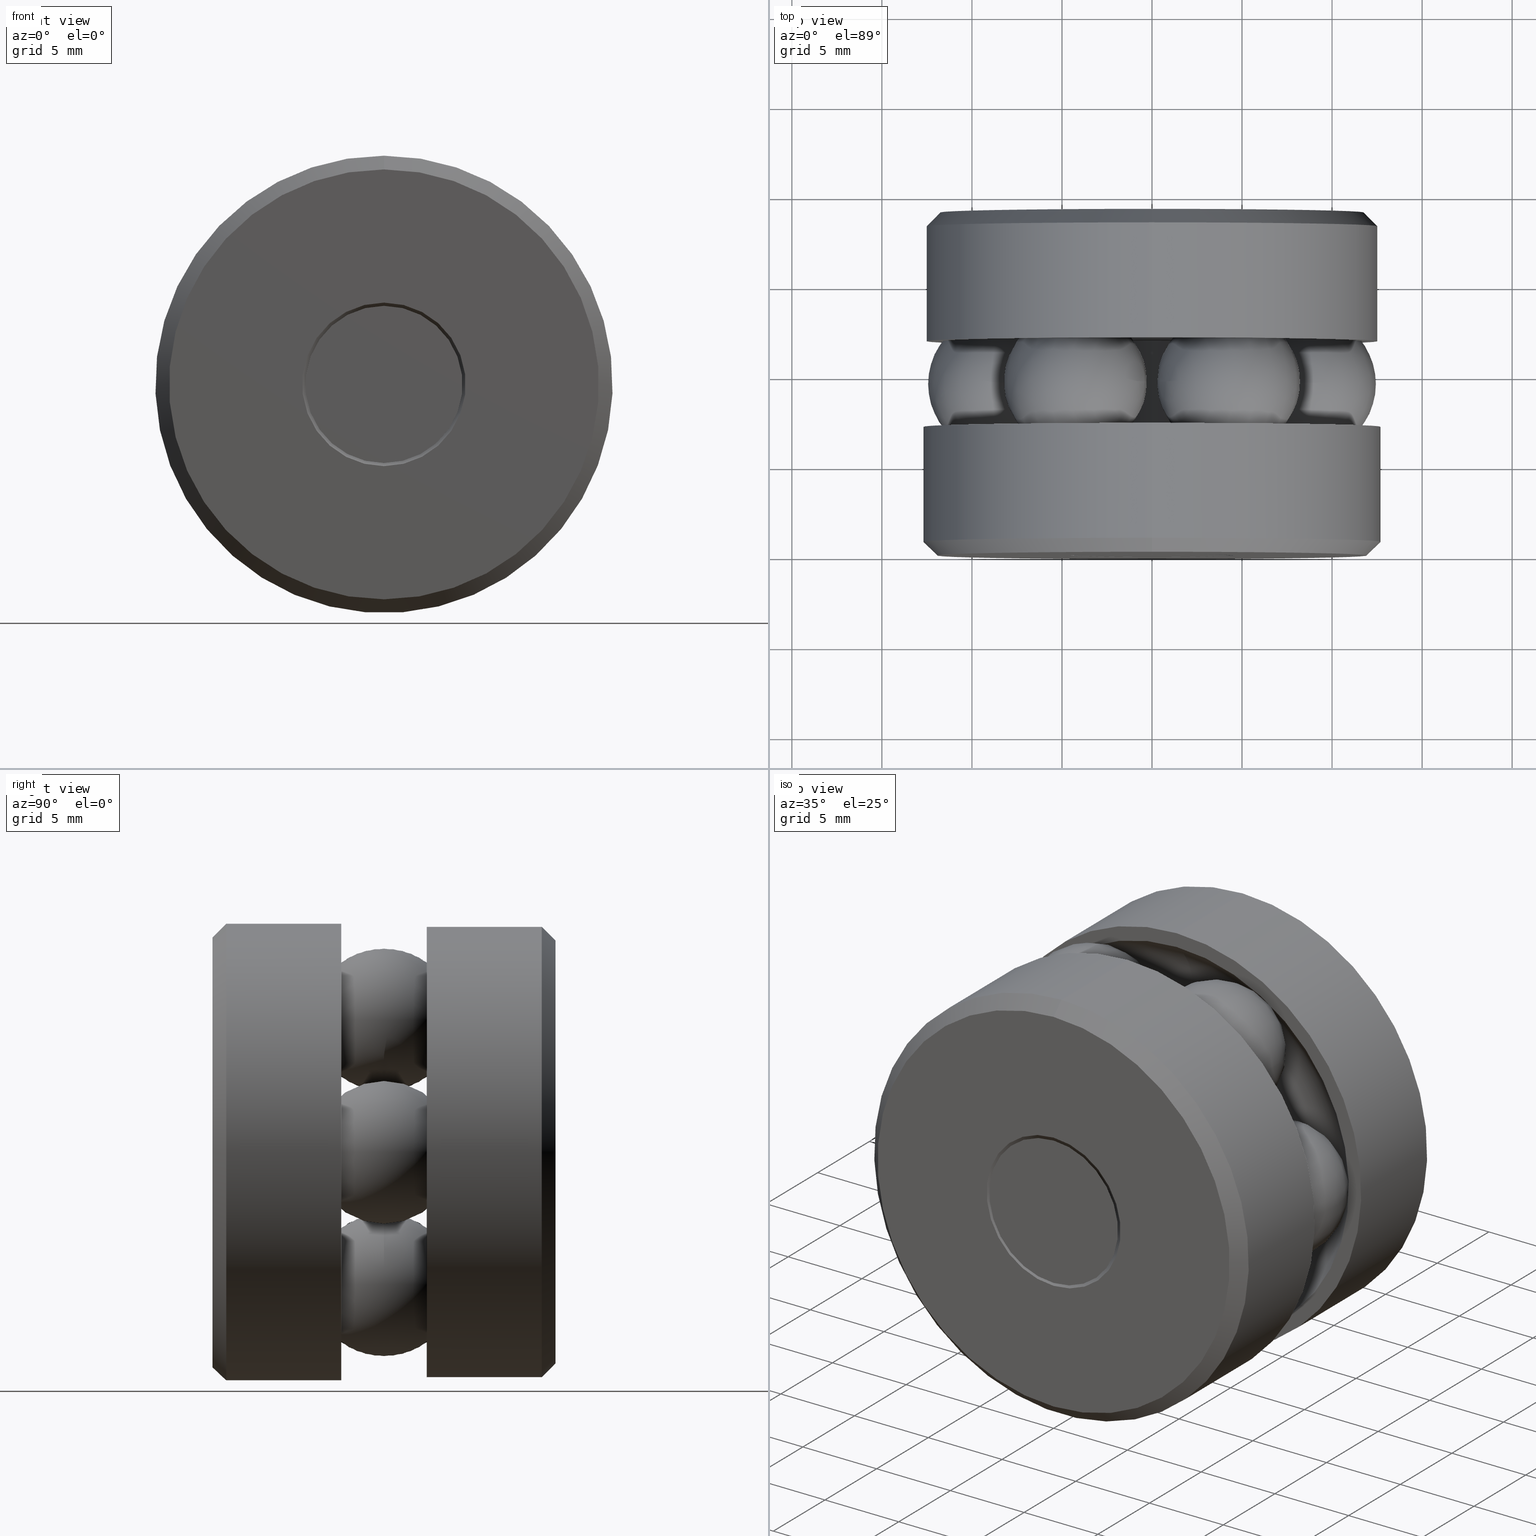
[diagram: canonical four-view strip — front | top / right | iso, engineering-drawing reading convention]
A machine part, canonical four-view strip (front | top / right | iso — engineering-drawing reading convention). The complete STEP part file that produces these views, byte-faithful:
ISO-10303-21;
HEADER;
FILE_DESCRIPTION (( 'STEP AP203' ),
    '1' );
FILE_NAME ('T-114RG_T-114RG-1000.step',
    '2016-02-04T15:34:11',
    ( '' ),
    ( '' ),
    'SwSTEP 2.0',
    'SolidWorks 2016',
    '' );
FILE_SCHEMA (( 'CONFIG_CONTROL_DESIGN' ));
ENDSEC;

DATA;
#1 = DIRECTION ( 'NONE',  ( 0.0000000000000000000, 0.0000000000000000000, -1.000000000000000000 ) ) ;
#2 = EDGE_LOOP ( 'NONE', ( #15 ) ) ;
#3 = APPLICATION_CONTEXT ( 'configuration controlled 3d designs of mechanical parts and assemblies' ) ;
#4 = AXIS2_PLACEMENT_3D ( 'NONE', #483, #441, #523 ) ;
#5 = DIRECTION ( 'NONE',  ( 0.5000000000000101000, 0.0000000000000000000, 0.8660254037844328200 ) ) ;
#6 = CIRCLE ( 'NONE', #475, 0.1717499999999989300 ) ;
#7 = DATE_TIME_ROLE ( 'creation_date' ) ;
#8 = EDGE_LOOP ( 'NONE', ( #510 ) ) ;
#9 = PERSON_AND_ORGANIZATION_ROLE ( 'creator' ) ;
#10 = APPROVAL_ROLE ( '' ) ;
#11 = DIRECTION ( 'NONE',  ( 0.0000000000000000000, 0.0000000000000000000, 1.000000000000000000 ) ) ;
#12 = CALENDAR_DATE ( 2016, 4, 2 ) ;
#13 = SPHERICAL_SURFACE ( 'NONE', #165, 0.1560000000000000000 ) ;
#14 = EDGE_CURVE ( 'NONE', #62, #62, #498, .T. ) ;
#15 = ORIENTED_EDGE ( 'NONE', *, *, #313, .T. ) ;
#16 = CARTESIAN_POINT ( 'NONE',  ( -0.1717499999999989300, 0.0000000000000000000, 0.0000000000000000000 ) ) ;
#17 = DIRECTION ( 'NONE',  ( -0.0000000000000000000, 1.000000000000000000, -0.0000000000000000000 ) ) ;
#18 = DIRECTION ( 'NONE',  ( -0.0000000000000000000, 1.000000000000000000, -0.0000000000000000000 ) ) ;
#19 = VERTEX_POINT ( 'NONE', #271 ) ;
#20 = CARTESIAN_POINT ( 'NONE',  ( 0.0000000000000000000, 0.6541789321881348300, 0.0000000000000000000 ) ) ;
#21 = FACE_OUTER_BOUND ( 'NONE', #104, .T. ) ;
#22 = DIRECTION ( 'NONE',  ( 0.0000000000000000000, 0.0000000000000000000, 1.000000000000000000 ) ) ;
#23 = ORIENTED_EDGE ( 'NONE', *, *, #232, .T. ) ;
#24 = PERSON_AND_ORGANIZATION ( #451, #200 ) ;
#25 = FACE_OUTER_BOUND ( 'NONE', #84, .T. ) ;
#26 = MANIFOLD_SOLID_BREP ( 'BALLS[3]', #143 ) ;
#27 = EDGE_LOOP ( 'NONE', ( #56 ) ) ;
#28 = CARTESIAN_POINT ( 'NONE',  ( 0.0000000000000000000, 0.0000000000000000000, 0.0000000000000000000 ) ) ;
#29 = CC_DESIGN_SECURITY_CLASSIFICATION ( #445, ( #297 ) ) ;
#30 = VERTEX_POINT ( 'NONE', #160 ) ;
#31 = FACE_BOUND ( 'NONE', #540, .T. ) ;
#32 = AXIS2_PLACEMENT_3D ( 'NONE', #199, #392, #350 ) ;
#33 = DIRECTION ( 'NONE',  ( 0.0000000000000000000, 0.0000000000000000000, 1.000000000000000000 ) ) ;
#34 = APPLICATION_CONTEXT ( 'configuration controlled 3d designs of mechanical parts and assemblies' ) ;
#35 = EDGE_LOOP ( 'NONE', ( #511 ) ) ;
#36 = ADVANCED_FACE ( 'NONE', ( #394, #355 ), #352, .T. ) ;
#37 = DIRECTION ( 'NONE',  ( 0.0000000000000000000, 0.0000000000000000000, 1.000000000000000000 ) ) ;
#38 = COORDINATED_UNIVERSAL_TIME_OFFSET ( 5, 0, .BEHIND. ) ;
#39 = FACE_OUTER_BOUND ( 'NONE', #134, .T. ) ;
#40 = DIRECTION ( 'NONE',  ( -0.0000000000000000000, 1.000000000000000000, -0.0000000000000000000 ) ) ;
#41 = ADVANCED_FACE ( 'NONE', ( #332, #542 ), #203, .T. ) ;
#42 = EDGE_LOOP ( 'NONE', ( #381 ) ) ;
#43 = EDGE_CURVE ( 'NONE', #497, #497, #285, .T. ) ;
#44 = CARTESIAN_POINT ( 'NONE',  ( -0.2102000000000000000, 0.4686000000000000200, 0.0000000000000000000 ) ) ;
#45 = VERTEX_POINT ( 'NONE', #438 ) ;
#46 = DIRECTION ( 'NONE',  ( -0.0000000000000000000, 1.000000000000000000, -0.0000000000000000000 ) ) ;
#47 = APPROVAL_STATUS ( 'not_yet_approved' ) ;
#48 = EDGE_LOOP ( 'NONE', ( #329 ) ) ;
#49 = AXIS2_PLACEMENT_3D ( 'NONE', #215, #544, #317 ) ;
#50 = LOCAL_TIME ( 10, 34, 11.00000000000000000, #163 ) ;
#51 = CARTESIAN_POINT ( 'NONE',  ( -0.1788210678118643800, 0.7500000000000001100, 0.0000000000000000000 ) ) ;
#52 = CONICAL_SURFACE ( 'NONE', #289, 0.08300000000000011500, 0.7853981633974431700 ) ;
#53 = CARTESIAN_POINT ( 'NONE',  ( 0.0000000000000000000, 0.0000000000000000000, 0.0000000000000000000 ) ) ;
#54 = EDGE_CURVE ( 'NONE', #391, #391, #177, .T. ) ;
#55 = APPLICATION_PROTOCOL_DEFINITION ( 'international standard', 'config_control_design', 1994, #34 ) ;
#56 = ORIENTED_EDGE ( 'NONE', *, *, #205, .F. ) ;
#57 = DIRECTION ( 'NONE',  ( -0.0000000000000000000, 1.000000000000000000, -0.0000000000000000000 ) ) ;
#58 = DIRECTION ( 'NONE',  ( 0.0000000000000000000, 0.0000000000000000000, 1.000000000000000000 ) ) ;
#59 = CARTESIAN_POINT ( 'NONE',  ( 0.0000000000000000000, 0.3750000000000001100, 0.0000000000000000000 ) ) ;
#60 = PRODUCT_DEFINITION_SHAPE ( 'NONE', 'NONE',  #155 ) ;
#61 = PRODUCT_RELATED_PRODUCT_CATEGORY ( 'detail', '', ( #411 ) ) ;
#62 = VERTEX_POINT ( 'NONE', #337 ) ;
#63 = DIRECTION ( 'NONE',  ( -0.0000000000000000000, 1.000000000000000000, -0.0000000000000000000 ) ) ;
#64 = CARTESIAN_POINT ( 'NONE',  ( -0.2101999999999999400, 0.2814000000000000900, 0.0000000000000000000 ) ) ;
#65 = PLANE ( 'NONE',  #82 ) ;
#66 = CARTESIAN_POINT ( 'NONE',  ( 0.0000000000000000000, 0.4686000000000001800, 0.0000000000000000000 ) ) ;
#67 = AXIS2_PLACEMENT_3D ( 'NONE', #365, #135, #145 ) ;
#68 = ORIENTED_EDGE ( 'NONE', *, *, #345, .F. ) ;
#69 = DIRECTION ( 'NONE',  ( 0.0000000000000000000, 0.0000000000000000000, 1.000000000000000000 ) ) ;
#70 = CALENDAR_DATE ( 2016, 4, 2 ) ;
#71 = FACE_BOUND ( 'NONE', #196, .T. ) ;
#72 = MANIFOLD_SOLID_BREP ( 'Revolve3', #347 ) ;
#73 = ORIENTED_EDGE ( 'NONE', *, *, #43, .F. ) ;
#74 = AXIS2_PLACEMENT_3D ( 'NONE', #519, #273, #130 ) ;
#75 = CARTESIAN_POINT ( 'NONE',  ( -0.1788210678118644400, -8.221311946131496800E-017, 0.0000000000000000000 ) ) ;
#76 = CLOSED_SHELL ( 'NONE', ( #464, #83, #387, #343, #124 ) ) ;
#77 = EDGE_LOOP ( 'NONE', ( #490 ) ) ;
#78 = FACE_OUTER_BOUND ( 'NONE', #77, .T. ) ;
#79 = PERSON_AND_ORGANIZATION ( #451, #200 ) ;
#80 = ADVANCED_FACE ( 'NONE', ( #536, #472 ), #369, .F. ) ;
#81 = FACE_OUTER_BOUND ( 'NONE', #323, .T. ) ;
#82 = AXIS2_PLACEMENT_3D ( 'NONE', #64, #198, #193 ) ;
#83 = ADVANCED_FACE ( 'NONE', ( #78 ), #92, .T. ) ;
#84 = EDGE_LOOP ( 'NONE', ( #388 ) ) ;
#85 = EDGE_CURVE ( 'NONE', #274, #274, #476, .T. ) ;
#86 = CYLINDRICAL_SURFACE ( 'NONE', #425, 0.4929999999999999900 ) ;
#87 = DIRECTION ( 'NONE',  ( 0.0000000000000000000, 0.0000000000000000000, 1.000000000000000000 ) ) ;
#88 = CARTESIAN_POINT ( 'NONE',  ( 0.0000000000000000000, 0.0000000000000000000, 0.0000000000000000000 ) ) ;
#89 = ORIENTED_EDGE ( 'NONE', *, *, #205, .T. ) ;
#90 = PERSON_AND_ORGANIZATION_ROLE ( 'design_owner' ) ;
#91 = AXIS2_PLACEMENT_3D ( 'NONE', #109, #18, #69 ) ;
#92 = PLANE ( 'NONE',  #366 ) ;
#93 = MECHANICAL_CONTEXT ( 'NONE', #34, 'mechanical' ) ;
#94 = FACE_OUTER_BOUND ( 'NONE', #8, .T. ) ;
#95 = DIRECTION ( 'NONE',  ( 0.0000000000000000000, -1.000000000000000000, 0.0000000000000000000 ) ) ;
#96 = DIRECTION ( 'NONE',  ( 1.000000000000000000, 0.0000000000000000000, 0.0000000000000000000 ) ) ;
#97 = EDGE_LOOP ( 'NONE', ( #376 ) ) ;
#98 = AXIS2_PLACEMENT_3D ( 'NONE', #246, #290, #96 ) ;
#99 =( NAMED_UNIT ( * ) SI_UNIT ( $, .STERADIAN. ) SOLID_ANGLE_UNIT ( ) );
#100 = DIRECTION ( 'NONE',  ( 0.4999999999999980600, 0.0000000000000000000, -0.8660254037844398200 ) ) ;
#101 = CIRCLE ( 'NONE', #282, 0.4699999999999999700 ) ;
#102 = DIRECTION ( 'NONE',  ( 0.8660254037844433700, -0.0000000000000000000, 0.4999999999999920100 ) ) ;
#103 = CARTESIAN_POINT ( 'NONE',  ( 0.0000000000000000000, 0.7199999999999995300, 0.0000000000000000000 ) ) ;
#104 = EDGE_LOOP ( 'NONE', ( #452 ) ) ;
#105 =( NAMED_UNIT ( * ) PLANE_ANGLE_UNIT ( ) SI_UNIT ( $, .RADIAN. ) );
#106 = LENGTH_MEASURE_WITH_UNIT ( LENGTH_MEASURE( 0.02539999999999999900 ), #431 );
#107 = CIRCLE ( 'NONE', #67, 0.08300000000000011500 ) ;
#108 = DIRECTION ( 'NONE',  ( -0.0000000000000000000, 1.000000000000000000, -0.0000000000000000000 ) ) ;
#109 = CARTESIAN_POINT ( 'NONE',  ( 0.0000000000000000000, 0.7500000000000001100, 0.0000000000000000000 ) ) ;
#110 = AXIS2_PLACEMENT_3D ( 'NONE', #328, #319, #312 ) ;
#111 = CLOSED_SHELL ( 'NONE', ( #467 ) ) ;
#112 = DIRECTION ( 'NONE',  ( 0.0000000000000000000, 0.0000000000000000000, -1.000000000000000000 ) ) ;
#113 = EDGE_CURVE ( 'NONE', #159, #159, #132, .T. ) ;
#114 = COORDINATED_UNIVERSAL_TIME_OFFSET ( 5, 0, .BEHIND. ) ;
#115 = CIRCLE ( 'NONE', #202, 0.5000000000000000000 ) ;
#116 = CARTESIAN_POINT ( 'NONE',  ( 0.0000000000000000000, 0.4685999999999999600, 0.0000000000000000000 ) ) ;
#117 = EDGE_LOOP ( 'NONE', ( #448 ) ) ;
#118 = VERTEX_POINT ( 'NONE', #253 ) ;
#119 = AXIS2_PLACEMENT_3D ( 'NONE', #59, #311, #533 ) ;
#120 = FACE_OUTER_BOUND ( 'NONE', #252, .T. ) ;
#121 = ADVANCED_FACE ( 'NONE', ( ), #349, .T. ) ;
#122 = DIRECTION ( 'NONE',  ( -0.0000000000000000000, 1.000000000000000000, -0.0000000000000000000 ) ) ;
#123 = EDGE_LOOP ( 'NONE', ( #407 ) ) ;
#124 = ADVANCED_FACE ( 'NONE', ( #21, #31 ), #334, .T. ) ;
#125 = LOCAL_TIME ( 10, 34, 11.00000000000000000, #243 ) ;
#126 = FACE_OUTER_BOUND ( 'NONE', #161, .T. ) ;
#127 = CC_DESIGN_PERSON_AND_ORGANIZATION_ASSIGNMENT ( #79, #90, ( #411 ) ) ;
#128 = MANIFOLD_SOLID_BREP ( 'Revolve2[3]', #204 ) ;
#129 = ORIENTED_EDGE ( 'NONE', *, *, #85, .T. ) ;
#130 = DIRECTION ( 'NONE',  ( 0.0000000000000000000, 0.0000000000000000000, 1.000000000000000000 ) ) ;
#131 = VERTEX_POINT ( 'NONE', #272 ) ;
#132 = CIRCLE ( 'NONE', #393, 0.07800000000000009700 ) ;
#133 = DIRECTION ( 'NONE',  ( 0.0000000000000000000, -0.0000000000000000000, -1.000000000000000000 ) ) ;
#134 = EDGE_LOOP ( 'NONE', ( #179 ) ) ;
#135 = DIRECTION ( 'NONE',  ( -0.0000000000000000000, 1.000000000000000000, -0.0000000000000000000 ) ) ;
#136 = AXIS2_PLACEMENT_3D ( 'NONE', #191, #189, #181 ) ;
#137 = DIRECTION ( 'NONE',  ( 0.0000000000000000000, -1.000000000000000000, 0.0000000000000000000 ) ) ;
#138 = APPROVAL_DATE_TIME ( #254, #327 ) ;
#139 = CYLINDRICAL_SURFACE ( 'NONE', #543, 0.07800000000000004200 ) ;
#140 = PLANE ( 'NONE',  #380 ) ;
#141 = EDGE_CURVE ( 'NONE', #45, #45, #6, .T. ) ;
#142 = CARTESIAN_POINT ( 'NONE',  ( 0.0000000000000000000, 0.09375000000000001400, 0.0000000000000000000 ) ) ;
#143 = CLOSED_SHELL ( 'NONE', ( #422 ) ) ;
#144 = DIRECTION ( 'NONE',  ( -0.0000000000000000000, 1.000000000000000000, -0.0000000000000000000 ) ) ;
#145 = DIRECTION ( 'NONE',  ( 0.0000000000000000000, 0.0000000000000000000, 1.000000000000000000 ) ) ;
#146 = CARTESIAN_POINT ( 'NONE',  ( 0.0000000000000000000, 0.7199999999999995300, 0.4929999999999999900 ) ) ;
#147 = VERTEX_POINT ( 'NONE', #162 ) ;
#148 = CARTESIAN_POINT ( 'NONE',  ( 0.0000000000000000000, 0.4686000000000001800, 0.4929999999999999900 ) ) ;
#149 = AXIS2_PLACEMENT_3D ( 'NONE', #228, #102, #278 ) ;
#150 = DIRECTION ( 'NONE',  ( 0.0000000000000000000, 0.0000000000000000000, -1.000000000000000000 ) ) ;
#151 = ORIENTED_EDGE ( 'NONE', *, *, #54, .F. ) ;
#152 = APPROVAL_PERSON_ORGANIZATION ( #264, #327, #304 ) ;
#153 = FACE_BOUND ( 'NONE', #301, .T. ) ;
#154 = DIRECTION ( 'NONE',  ( -0.8660254037844398200, 0.0000000000000000000, -0.4999999999999980600 ) ) ;
#155 = PRODUCT_DEFINITION ( 'UNKNOWN', '', #297, #530 ) ;
#156 = EDGE_LOOP ( 'NONE', ( #528 ) ) ;
#157 = CARTESIAN_POINT ( 'NONE',  ( 0.0000000000000000000, 0.4686000000000001800, 0.4597999999999998200 ) ) ;
#158 = AXIS2_PLACEMENT_3D ( 'NONE', #44, #95, #186 ) ;
#159 = VERTEX_POINT ( 'NONE', #427 ) ;
#160 = CARTESIAN_POINT ( 'NONE',  ( 0.0000000000000000000, 0.4686000000000001800, 0.2102000000000000000 ) ) ;
#161 = EDGE_LOOP ( 'NONE', ( #534 ) ) ;
#162 = CARTESIAN_POINT ( 'NONE',  ( 0.0000000000000000000, 0.4685999999999999600, 0.08300000000000003200 ) ) ;
#163 = COORDINATED_UNIVERSAL_TIME_OFFSET ( 5, 0, .BEHIND. ) ;
#164 = ADVANCED_FACE ( 'NONE', ( ), #450, .T. ) ;
#165 = AXIS2_PLACEMENT_3D ( 'NONE', #395, #399, #336 ) ;
#166 = CIRCLE ( 'NONE', #351, 0.4597999999999998200 ) ;
#167 = CARTESIAN_POINT ( 'NONE',  ( 0.0000000000000000000, 0.7500000000000001100, 0.1788210678118643800 ) ) ;
#168 = CARTESIAN_POINT ( 'NONE',  ( 0.1675000000000013100, 0.3750000000000001100, 0.2901185102677861800 ) ) ;
#169 = MANIFOLD_SOLID_BREP ( 'BALLS[1]', #396 ) ;
#170 = ADVANCED_FACE ( 'NONE', ( #239, #462 ), #400, .T. ) ;
#171 = EDGE_CURVE ( 'NONE', #488, #488, #224, .T. ) ;
#172 = EDGE_LOOP ( 'NONE', ( #263 ) ) ;
#173 = PLANE ( 'NONE',  #308 ) ;
#174 = DIRECTION ( 'NONE',  ( 0.0000000000000000000, 0.0000000000000000000, 1.000000000000000000 ) ) ;
#175 = DIRECTION ( 'NONE',  ( 0.0000000000000000000, 0.0000000000000000000, 1.000000000000000000 ) ) ;
#176 = APPROVAL_STATUS ( 'not_yet_approved' ) ;
#177 = CIRCLE ( 'NONE', #248, 0.4597999999999997600 ) ;
#178 = AXIS2_PLACEMENT_3D ( 'NONE', #520, #360, #150 ) ;
#179 = ORIENTED_EDGE ( 'NONE', *, *, #113, .F. ) ;
#180 = DIRECTION ( 'NONE',  ( -0.0000000000000000000, 1.000000000000000000, 0.0000000000000000000 ) ) ;
#181 = DIRECTION ( 'NONE',  ( 0.0000000000000000000, 0.0000000000000000000, 1.000000000000000000 ) ) ;
#182 = LOCAL_TIME ( 10, 34, 11.00000000000000000, #292 ) ;
#183 = FACE_OUTER_BOUND ( 'NONE', #320, .T. ) ;
#184 = CARTESIAN_POINT ( 'NONE',  ( 0.0000000000000000000, 0.4686000000000001800, 0.0000000000000000000 ) ) ;
#185 = ORIENTED_EDGE ( 'NONE', *, *, #456, .T. ) ;
#186 = DIRECTION ( 'NONE',  ( 0.0000000000000000000, -0.0000000000000000000, -1.000000000000000000 ) ) ;
#187 = APPROVAL ( #277, 'UNSPECIFIED' ) ;
#188 = DIRECTION ( 'NONE',  ( -0.0000000000000000000, 1.000000000000000000, -0.0000000000000000000 ) ) ;
#189 = DIRECTION ( 'NONE',  ( -0.0000000000000000000, 1.000000000000000000, -0.0000000000000000000 ) ) ;
#190 = FACE_OUTER_BOUND ( 'NONE', #48, .T. ) ;
#191 = CARTESIAN_POINT ( 'NONE',  ( 0.0000000000000000000, 0.03000000000000017600, 0.0000000000000000000 ) ) ;
#192 = CARTESIAN_POINT ( 'NONE',  ( 0.0000000000000000000, 0.2814000000000001500, 0.0000000000000000000 ) ) ;
#193 = DIRECTION ( 'NONE',  ( 0.0000000000000000000, 0.0000000000000000000, 1.000000000000000000 ) ) ;
#194 = AXIS2_PLACEMENT_3D ( 'NONE', #192, #487, #236 ) ;
#195 = CARTESIAN_POINT ( 'NONE',  ( 0.0000000000000000000, 0.0000000000000000000, 0.0000000000000000000 ) ) ;
#196 = EDGE_LOOP ( 'NONE', ( #458 ) ) ;
#197 = CARTESIAN_POINT ( 'NONE',  ( -0.1675000000000033400, 0.3750000000000001100, -0.2901185102677849600 ) ) ;
#198 = DIRECTION ( 'NONE',  ( -0.0000000000000000000, 1.000000000000000000, 0.0000000000000000000 ) ) ;
#199 = CARTESIAN_POINT ( 'NONE',  ( -0.5000000000000000000, 0.2814000000000000400, 0.0000000000000000000 ) ) ;
#200 = ORGANIZATION ( 'UNSPECIFIED', 'UNSPECIFIED', '' ) ;
#201 = CIRCLE ( 'NONE', #240, 0.08300000000000003200 ) ;
#202 = AXIS2_PLACEMENT_3D ( 'NONE', #463, #460, #174 ) ;
#203 = PLANE ( 'NONE',  #221 ) ;
#204 = CLOSED_SHELL ( 'NONE', ( #545, #335, #294, #80, #424, #383, #212, #170 ) ) ;
#205 = EDGE_CURVE ( 'NONE', #378, #378, #107, .T. ) ;
#206 = CIRCLE ( 'NONE', #401, 0.1788210678118644400 ) ;
#207 = ORIENTED_EDGE ( 'NONE', *, *, #141, .F. ) ;
#208 = DIRECTION ( 'NONE',  ( 0.0000000000000000000, 0.0000000000000000000, 1.000000000000000000 ) ) ;
#209 = AXIS2_PLACEMENT_3D ( 'NONE', #66, #63, #58 ) ;
#210 = DIRECTION ( 'NONE',  ( 0.0000000000000000000, 0.0000000000000000000, 1.000000000000000000 ) ) ;
#211 = CIRCLE ( 'NONE', #91, 0.1788210678118643800 ) ;
#212 = ADVANCED_FACE ( 'NONE', ( #120, #541 ), #434, .F. ) ;
#213 = EDGE_LOOP ( 'NONE', ( #73 ) ) ;
#214 = ADVANCED_FACE ( 'NONE', ( ), #250, .T. ) ;
#215 = CARTESIAN_POINT ( 'NONE',  ( 0.0000000000000000000, 0.7500000000000001100, 0.0000000000000000000 ) ) ;
#216 = APPROVAL_DATE_TIME ( #325, #525 ) ;
#217 = CC_DESIGN_APPROVAL ( #187, ( #155 ) ) ;
#218 = SPHERICAL_SURFACE ( 'NONE', #340, 0.1560000000000000000 ) ;
#219 = CARTESIAN_POINT ( 'NONE',  ( 0.0000000000000000000, 0.09582106781186551500, 0.0000000000000000000 ) ) ;
#220 = DIMENSIONAL_EXPONENTS ( 1.000000000000000000, 0.0000000000000000000, 0.0000000000000000000, 0.0000000000000000000, 0.0000000000000000000, 0.0000000000000000000, 0.0000000000000000000 ) ;
#221 = AXIS2_PLACEMENT_3D ( 'NONE', #51, #535, #11 ) ;
#222 = ORIENTED_EDGE ( 'NONE', *, *, #430, .T. ) ;
#223 = DIRECTION ( 'NONE',  ( -0.0000000000000000000, 1.000000000000000000, -0.0000000000000000000 ) ) ;
#224 = CIRCLE ( 'NONE', #4, 0.1717499999999990700 ) ;
#225 = AXIS2_PLACEMENT_3D ( 'NONE', #333, #331, #210 ) ;
#226 = ORIENTED_EDGE ( 'NONE', *, *, #539, .T. ) ;
#227 = APPROVAL_PERSON_ORGANIZATION ( #342, #525, #315 ) ;
#228 = CARTESIAN_POINT ( 'NONE',  ( 0.1674999999999972600, 0.3750000000000001100, -0.2901185102677884000 ) ) ;
#229 = CONICAL_SURFACE ( 'NONE', #49, 0.1717499999999990700, 0.7853981633974431700 ) ;
#230 = DIRECTION ( 'NONE',  ( 0.0000000000000000000, 0.0000000000000000000, 1.000000000000000000 ) ) ;
#231 = MANIFOLD_SOLID_BREP ( 'BALLS[2]', #111 ) ;
#232 = EDGE_CURVE ( 'NONE', #260, #260, #211, .T. ) ;
#233 = DIRECTION ( 'NONE',  ( 0.0000000000000000000, 0.0000000000000000000, 1.000000000000000000 ) ) ;
#234 = DIRECTION ( 'NONE',  ( -0.0000000000000000000, 1.000000000000000000, -0.0000000000000000000 ) ) ;
#235 = EDGE_LOOP ( 'NONE', ( #185 ) ) ;
#236 = DIRECTION ( 'NONE',  ( 0.0000000000000000000, 0.0000000000000000000, 1.000000000000000000 ) ) ;
#237 = CARTESIAN_POINT ( 'NONE',  ( 0.0000000000000000000, 0.0000000000000000000, 0.0000000000000000000 ) ) ;
#238 = VERTEX_POINT ( 'NONE', #257 ) ;
#239 = FACE_OUTER_BOUND ( 'NONE', #371, .T. ) ;
#240 = AXIS2_PLACEMENT_3D ( 'NONE', #116, #108, #87 ) ;
#241 = CLOSED_SHELL ( 'NONE', ( #164 ) ) ;
#242 = DIRECTION ( 'NONE',  ( 0.0000000000000000000, 0.0000000000000000000, 1.000000000000000000 ) ) ;
#243 = COORDINATED_UNIVERSAL_TIME_OFFSET ( 5, 0, .BEHIND. ) ;
#244 = CIRCLE ( 'NONE', #453, 0.08300000000000000400 ) ;
#245 = CC_DESIGN_PERSON_AND_ORGANIZATION_ASSIGNMENT ( #280, #9, ( #155 ) ) ;
#246 = CARTESIAN_POINT ( 'NONE',  ( 0.0000000000000000000, 0.0000000000000000000, 0.0000000000000000000 ) ) ;
#247 = EDGE_LOOP ( 'NONE', ( #494 ) ) ;
#248 = AXIS2_PLACEMENT_3D ( 'NONE', #303, #404, #22 ) ;
#249 = VERTEX_POINT ( 'NONE', #146 ) ;
#250 = SPHERICAL_SURFACE ( 'NONE', #149, 0.1560000000000000000 ) ;
#251 = ADVANCED_FACE ( 'NONE', ( #94, #306 ), #413, .T. ) ;
#252 = EDGE_LOOP ( 'NONE', ( #478 ) ) ;
#253 = CARTESIAN_POINT ( 'NONE',  ( 0.0000000000000000000, 0.09582106781186551500, 0.08300000000000000400 ) ) ;
#254 = DATE_AND_TIME ( #372, #479 ) ;
#255 = ADVANCED_FACE ( 'NONE', ( #420, #322 ), #293, .F. ) ;
#256 = CIRCLE ( 'NONE', #516, 0.4929999999999999900 ) ;
#257 = CARTESIAN_POINT ( 'NONE',  ( 0.0000000000000000000, 0.0000000000000000000, 0.1788210678118644400 ) ) ;
#258 = EDGE_CURVE ( 'NONE', #147, #147, #201, .T. ) ;
#259 = ORIENTED_EDGE ( 'NONE', *, *, #507, .F. ) ;
#260 = VERTEX_POINT ( 'NONE', #167 ) ;
#261 = CARTESIAN_POINT ( 'NONE',  ( 0.0000000000000000000, -1.644262389226299400E-016, 0.4699999999999999700 ) ) ;
#262 = AXIS2_PLACEMENT_3D ( 'NONE', #237, #305, #473 ) ;
#263 = ORIENTED_EDGE ( 'NONE', *, *, #486, .T. ) ;
#264 = PERSON_AND_ORGANIZATION ( #451, #200 ) ;
#265 = FACE_OUTER_BOUND ( 'NONE', #279, .T. ) ;
#266 = MANIFOLD_SOLID_BREP ( 'Revolve2[1]', #76 ) ;
#267 = CARTESIAN_POINT ( 'NONE',  ( 0.0000000000000000000, 0.03000000000000017600, 0.5000000000000000000 ) ) ;
#268 = CC_DESIGN_DATE_AND_TIME_ASSIGNMENT ( #385, #7, ( #155 ) ) ;
#269 = EDGE_LOOP ( 'NONE', ( #129 ) ) ;
#270 = DIRECTION ( 'NONE',  ( -0.0000000000000000000, 1.000000000000000000, -0.0000000000000000000 ) ) ;
#271 = CARTESIAN_POINT ( 'NONE',  ( 0.0000000000000000000, 0.2814000000000000400, 0.5000000000000000000 ) ) ;
#272 = CARTESIAN_POINT ( 'NONE',  ( 0.0000000000000000000, 0.7500000000000001100, 0.4630000000000000200 ) ) ;
#273 = DIRECTION ( 'NONE',  ( -0.0000000000000000000, 1.000000000000000000, -0.0000000000000000000 ) ) ;
#274 = VERTEX_POINT ( 'NONE', #353 ) ;
#275 = AXIS2_PLACEMENT_3D ( 'NONE', #53, #447, #1 ) ;
#276 =( CONVERSION_BASED_UNIT ( 'INCH', #106 ) LENGTH_UNIT ( ) NAMED_UNIT ( #220 ) );
#277 = APPROVAL_STATUS ( 'not_yet_approved' ) ;
#278 = DIRECTION ( 'NONE',  ( -0.4999999999999920100, 0.0000000000000000000, 0.8660254037844433700 ) ) ;
#279 = EDGE_LOOP ( 'NONE', ( #354 ) ) ;
#280 = PERSON_AND_ORGANIZATION ( #451, #200 ) ;
#281 = FACE_BOUND ( 'NONE', #172, .T. ) ;
#282 = AXIS2_PLACEMENT_3D ( 'NONE', #379, #370, #368 ) ;
#283 = ORIENTED_EDGE ( 'NONE', *, *, #113, .T. ) ;
#284 = EDGE_CURVE ( 'NONE', #30, #30, #532, .T. ) ;
#285 = CIRCLE ( 'NONE', #194, 0.2102000000000000000 ) ;
#286 = PERSON_AND_ORGANIZATION_ROLE ( 'classification_officer' ) ;
#287 = CLOSED_SHELL ( 'NONE', ( #214 ) ) ;
#288 = EDGE_LOOP ( 'NONE', ( #466 ) ) ;
#289 = AXIS2_PLACEMENT_3D ( 'NONE', #20, #122, #402 ) ;
#290 = DIRECTION ( 'NONE',  ( 0.0000000000000000000, 0.0000000000000000000, 1.000000000000000000 ) ) ;
#291 = ADVANCED_FACE ( 'NONE', ( #183, #503 ), #52, .F. ) ;
#292 = COORDINATED_UNIVERSAL_TIME_OFFSET ( 5, 0, .BEHIND. ) ;
#293 = CYLINDRICAL_SURFACE ( 'NONE', #262, 0.08300000000000007400 ) ;
#294 = ADVANCED_FACE ( 'NONE', ( #71, #81 ), #140, .T. ) ;
#295 = DIRECTION ( 'NONE',  ( -0.5000000000000040000, 0.0000000000000000000, -0.8660254037844363800 ) ) ;
#296 = ORIENTED_EDGE ( 'NONE', *, *, #258, .T. ) ;
#297 = PRODUCT_DEFINITION_FORMATION_WITH_SPECIFIED_SOURCE ( 'ANY', '', #411, .NOT_KNOWN. ) ;
#298 = DIRECTION ( 'NONE',  ( -0.8660254037844363800, 0.0000000000000000000, 0.5000000000000040000 ) ) ;
#299 = FACE_OUTER_BOUND ( 'NONE', #42, .T. ) ;
#300 = DATE_TIME_ROLE ( 'classification_date' ) ;
#301 = EDGE_LOOP ( 'NONE', ( #419 ) ) ;
#302 = CLOSED_SHELL ( 'NONE', ( #291, #255, #36, #547, #338, #500, #251, #41 ) ) ;
#303 = CARTESIAN_POINT ( 'NONE',  ( 0.0000000000000000000, 0.2813999999999999800, 0.0000000000000000000 ) ) ;
#304 = APPROVAL_ROLE ( '' ) ;
#305 = DIRECTION ( 'NONE',  ( -0.0000000000000000000, 1.000000000000000000, -0.0000000000000000000 ) ) ;
#306 = FACE_BOUND ( 'NONE', #288, .T. ) ;
#307 = CARTESIAN_POINT ( 'NONE',  ( -0.3349999999999999100, 0.3750000000000001100, 0.0000000000000000000 ) ) ;
#308 = AXIS2_PLACEMENT_3D ( 'NONE', #16, #480, #477 ) ;
#309 = DIRECTION ( 'NONE',  ( -0.0000000000000000000, 1.000000000000000000, -0.0000000000000000000 ) ) ;
#310 = ORIENTED_EDGE ( 'NONE', *, *, #456, .F. ) ;
#311 = DIRECTION ( 'NONE',  ( -0.0000000000000000000, 1.000000000000000000, -0.0000000000000000000 ) ) ;
#312 = DIRECTION ( 'NONE',  ( 0.0000000000000000000, 0.0000000000000000000, 1.000000000000000000 ) ) ;
#313 = EDGE_CURVE ( 'NONE', #474, #474, #166, .T. ) ;
#314 = SHAPE_DEFINITION_REPRESENTATION ( #60, #389 ) ;
#315 = APPROVAL_ROLE ( '' ) ;
#316 = CARTESIAN_POINT ( 'NONE',  ( -0.1674999999999992600, 0.3750000000000001100, 0.2901185102677872300 ) ) ;
#317 = DIRECTION ( 'NONE',  ( 0.0000000000000000000, 0.0000000000000000000, 1.000000000000000000 ) ) ;
#318 = APPLICATION_PROTOCOL_DEFINITION ( 'international standard', 'config_control_design', 1994, #3 ) ;
#319 = DIRECTION ( 'NONE',  ( -0.0000000000000000000, 1.000000000000000000, -0.0000000000000000000 ) ) ;
#320 = EDGE_LOOP ( 'NONE', ( #23 ) ) ;
#321 = CARTESIAN_POINT ( 'NONE',  ( 0.0000000000000000000, 0.6562500000000001100, 0.0000000000000000000 ) ) ;
#322 = FACE_OUTER_BOUND ( 'NONE', #35, .T. ) ;
#323 = EDGE_LOOP ( 'NONE', ( #499 ) ) ;
#324 = MANIFOLD_SOLID_BREP ( 'BALLS[5]', #241 ) ;
#325 = DATE_AND_TIME ( #442, #548 ) ;
#326 = TOROIDAL_SURFACE ( 'NONE', #482, 0.3349999999999999100, 0.1559999999999999400 ) ;
#327 = APPROVAL ( #47, 'UNSPECIFIED' ) ;
#328 = CARTESIAN_POINT ( 'NONE',  ( 0.0000000000000000000, 0.7500000000000001100, 0.0000000000000000000 ) ) ;
#329 = ORIENTED_EDGE ( 'NONE', *, *, #430, .F. ) ;
#330 = AXIS2_PLACEMENT_3D ( 'NONE', #142, #270, #437 ) ;
#331 = DIRECTION ( 'NONE',  ( -0.0000000000000000000, 1.000000000000000000, -0.0000000000000000000 ) ) ;
#332 = FACE_OUTER_BOUND ( 'NONE', #247, .T. ) ;
#333 = CARTESIAN_POINT ( 'NONE',  ( 0.0000000000000000000, 0.0000000000000000000, 0.0000000000000000000 ) ) ;
#334 = CONICAL_SURFACE ( 'NONE', #418, 0.07800000000000000000, 0.7853981633974426200 ) ;
#335 = ADVANCED_FACE ( 'NONE', ( #281, #517 ), #481, .T. ) ;
#336 = DIRECTION ( 'NONE',  ( -1.000000000000000000, 0.0000000000000000000, 6.982962677686266700E-015 ) ) ;
#337 = CARTESIAN_POINT ( 'NONE',  ( 0.0000000000000000000, 0.2814000000000000900, 0.08299999999999999000 ) ) ;
#338 = ADVANCED_FACE ( 'NONE', ( #398, #386 ), #408, .T. ) ;
#339 = ORIENTED_EDGE ( 'NONE', *, *, #345, .T. ) ;
#340 = AXIS2_PLACEMENT_3D ( 'NONE', #168, #298, #295 ) ;
#341 = CARTESIAN_POINT ( 'NONE',  ( 0.0000000000000000000, 0.2814000000000001500, 0.2102000000000000000 ) ) ;
#342 = PERSON_AND_ORGANIZATION ( #451, #200 ) ;
#343 = ADVANCED_FACE ( 'NONE', ( #493, #39 ), #139, .T. ) ;
#344 = CIRCLE ( 'NONE', #110, 0.4630000000000000200 ) ;
#345 = EDGE_CURVE ( 'NONE', #367, #367, #256, .T. ) ;
#346 = DIRECTION ( 'NONE',  ( 0.0000000000000000000, 0.0000000000000000000, 1.000000000000000000 ) ) ;
#347 = CLOSED_SHELL ( 'NONE', ( #504 ) ) ;
#348 = VERTEX_POINT ( 'NONE', #261 ) ;
#349 = SPHERICAL_SURFACE ( 'NONE', #449, 0.1560000000000000000 ) ;
#350 = DIRECTION ( 'NONE',  ( 0.0000000000000000000, 0.0000000000000000000, 1.000000000000000000 ) ) ;
#351 = AXIS2_PLACEMENT_3D ( 'NONE', #489, #423, #421 ) ;
#352 = PLANE ( 'NONE',  #158 ) ;
#353 = CARTESIAN_POINT ( 'NONE',  ( 0.0000000000000000000, 0.09375000000000001400, 0.07800000000000000000 ) ) ;
#354 = ORIENTED_EDGE ( 'NONE', *, *, #539, .F. ) ;
#355 = FACE_OUTER_BOUND ( 'NONE', #117, .T. ) ;
#356 = PERSON_AND_ORGANIZATION ( #451, #200 ) ;
#357 = CARTESIAN_POINT ( 'NONE',  ( 0.0000000000000000000, 0.7500000000000001100, 0.0000000000000000000 ) ) ;
#358 = FACE_OUTER_BOUND ( 'NONE', #123, .T. ) ;
#359 = CARTESIAN_POINT ( 'NONE',  ( 0.0000000000000000000, 0.3750000000000001100, 0.0000000000000000000 ) ) ;
#360 = DIRECTION ( 'NONE',  ( 0.0000000000000000000, -1.000000000000000000, 0.0000000000000000000 ) ) ;
#361 = PERSON_AND_ORGANIZATION_ROLE ( 'design_supplier' ) ;
#362 = CC_DESIGN_APPROVAL ( #327, ( #297 ) ) ;
#363 = SECURITY_CLASSIFICATION_LEVEL ( 'unclassified' ) ;
#364 = EDGE_LOOP ( 'NONE', ( #151 ) ) ;
#365 = CARTESIAN_POINT ( 'NONE',  ( 0.0000000000000000000, 0.6541789321881348300, 0.0000000000000000000 ) ) ;
#366 = AXIS2_PLACEMENT_3D ( 'NONE', #357, #180, #242 ) ;
#367 = VERTEX_POINT ( 'NONE', #148 ) ;
#368 = DIRECTION ( 'NONE',  ( 0.0000000000000000000, 0.0000000000000000000, 1.000000000000000000 ) ) ;
#369 = CONICAL_SURFACE ( 'NONE', #275, 0.1788210678118644400, 0.7853981633974426200 ) ;
#370 = DIRECTION ( 'NONE',  ( -0.0000000000000000000, 1.000000000000000000, -0.0000000000000000000 ) ) ;
#371 = EDGE_LOOP ( 'NONE', ( #222 ) ) ;
#372 = CALENDAR_DATE ( 2016, 4, 2 ) ;
#373 = AXIS2_PLACEMENT_3D ( 'NONE', #307, #440, #457 ) ;
#374 = CIRCLE ( 'NONE', #465, 0.4929999999999999900 ) ;
#375 = EDGE_CURVE ( 'NONE', #249, #249, #374, .T. ) ;
#376 = ORIENTED_EDGE ( 'NONE', *, *, #375, .F. ) ;
#377 = PERSON_AND_ORGANIZATION_ROLE ( 'creator' ) ;
#378 = VERTEX_POINT ( 'NONE', #435 ) ;
#379 = CARTESIAN_POINT ( 'NONE',  ( 0.0000000000000000000, -1.644262389226299400E-016, 0.0000000000000000000 ) ) ;
#380 = AXIS2_PLACEMENT_3D ( 'NONE', #75, #137, #133 ) ;
#381 = ORIENTED_EDGE ( 'NONE', *, *, #284, .T. ) ;
#382 = CARTESIAN_POINT ( 'NONE',  ( 0.0000000000000000000, 0.0000000000000000000, 0.0000000000000000000 ) ) ;
#383 = ADVANCED_FACE ( 'NONE', ( #25, #153 ), #65, .T. ) ;
#384 = DIRECTION ( 'NONE',  ( 0.0000000000000000000, 0.0000000000000000000, 1.000000000000000000 ) ) ;
#385 = DATE_AND_TIME ( #492, #50 ) ;
#386 = FACE_OUTER_BOUND ( 'NONE', #546, .T. ) ;
#387 = ADVANCED_FACE ( 'NONE', ( #469, #126 ), #229, .T. ) ;
#388 = ORIENTED_EDGE ( 'NONE', *, *, #43, .T. ) ;
#389 = ADVANCED_BREP_SHAPE_REPRESENTATION ( 'T-114RG_T-114RG-1000', ( #266, #428, #128, #72, #169, #231, #26, #522, #324, #98 ), #505 ) ;
#390 = CC_DESIGN_PERSON_AND_ORGANIZATION_ASSIGNMENT ( #24, #377, ( #297 ) ) ;
#391 = VERTEX_POINT ( 'NONE', #433 ) ;
#392 = DIRECTION ( 'NONE',  ( -0.0000000000000000000, 1.000000000000000000, 0.0000000000000000000 ) ) ;
#393 = AXIS2_PLACEMENT_3D ( 'NONE', #321, #529, #233 ) ;
#394 = FACE_BOUND ( 'NONE', #439, .T. ) ;
#395 = CARTESIAN_POINT ( 'NONE',  ( 0.3349999999999999100, 0.3750000000000001100, -2.339292497024898800E-015 ) ) ;
#396 = CLOSED_SHELL ( 'NONE', ( #121 ) ) ;
#397 = APPROVAL_DATE_TIME ( #502, #187 ) ;
#398 = FACE_BOUND ( 'NONE', #2, .T. ) ;
#399 = DIRECTION ( 'NONE',  ( 6.982962677686266700E-015, -0.0000000000000000000, 1.000000000000000000 ) ) ;
#400 = PLANE ( 'NONE',  #32 ) ;
#401 = AXIS2_PLACEMENT_3D ( 'NONE', #195, #46, #37 ) ;
#402 = DIRECTION ( 'NONE',  ( 0.0000000000000000000, 0.0000000000000000000, 1.000000000000000000 ) ) ;
#403 = EDGE_LOOP ( 'NONE', ( #283 ) ) ;
#404 = DIRECTION ( 'NONE',  ( -0.0000000000000000000, 1.000000000000000000, -0.0000000000000000000 ) ) ;
#405 = EDGE_CURVE ( 'NONE', #131, #131, #344, .T. ) ;
#406 = FACE_OUTER_BOUND ( 'NONE', #471, .T. ) ;
#407 = ORIENTED_EDGE ( 'NONE', *, *, #14, .T. ) ;
#408 = PLANE ( 'NONE',  #491 ) ;
#409 = EDGE_LOOP ( 'NONE', ( #310 ) ) ;
#410 = AXIS2_PLACEMENT_3D ( 'NONE', #509, #144, #495 ) ;
#411 = PRODUCT ( 'T-114RG_T-114RG-1000', 'T-114RG_T-114RG-1000', '', ( #93 ) ) ;
#412 = APPROVAL_PERSON_ORGANIZATION ( #515, #187, #10 ) ;
#413 = CONICAL_SURFACE ( 'NONE', #178, 0.4630000000000000200, 0.7853981633974391800 ) ;
#414 = DIRECTION ( 'NONE',  ( 0.8660254037844328200, 0.0000000000000000000, -0.5000000000000101000 ) ) ;
#415 = EDGE_LOOP ( 'NONE', ( #89 ) ) ;
#416 = CC_DESIGN_PERSON_AND_ORGANIZATION_ASSIGNMENT ( #468, #361, ( #297 ) ) ;
#417 = FACE_OUTER_BOUND ( 'NONE', #235, .T. ) ;
#418 = AXIS2_PLACEMENT_3D ( 'NONE', #444, #512, #112 ) ;
#419 = ORIENTED_EDGE ( 'NONE', *, *, #14, .F. ) ;
#420 = FACE_OUTER_BOUND ( 'NONE', #415, .T. ) ;
#421 = DIRECTION ( 'NONE',  ( 0.0000000000000000000, 0.0000000000000000000, 1.000000000000000000 ) ) ;
#422 = ADVANCED_FACE ( 'NONE', ( ), #13, .T. ) ;
#423 = DIRECTION ( 'NONE',  ( -0.0000000000000000000, 1.000000000000000000, -0.0000000000000000000 ) ) ;
#424 = ADVANCED_FACE ( 'NONE', ( #358, #265 ), #443, .F. ) ;
#425 = AXIS2_PLACEMENT_3D ( 'NONE', #382, #309, #384 ) ;
#426 = ORIENTED_EDGE ( 'NONE', *, *, #313, .F. ) ;
#427 = CARTESIAN_POINT ( 'NONE',  ( 0.0000000000000000000, 0.6562500000000001100, 0.07800000000000009700 ) ) ;
#428 = MANIFOLD_SOLID_BREP ( 'Revolve2[2]', #302 ) ;
#429 = FACE_OUTER_BOUND ( 'NONE', #97, .T. ) ;
#430 = EDGE_CURVE ( 'NONE', #19, #19, #115, .T. ) ;
#431 =( LENGTH_UNIT ( ) NAMED_UNIT ( * ) SI_UNIT ( $, .METRE. ) );
#432 = EDGE_LOOP ( 'NONE', ( #207 ) ) ;
#433 = CARTESIAN_POINT ( 'NONE',  ( 0.0000000000000000000, 0.2813999999999999800, 0.4597999999999997600 ) ) ;
#434 = TOROIDAL_SURFACE ( 'NONE', #119, 0.3349999999999999100, 0.1559999999999999200 ) ;
#435 = CARTESIAN_POINT ( 'NONE',  ( 0.0000000000000000000, 0.6541789321881348300, 0.08300000000000011500 ) ) ;
#436 = CARTESIAN_POINT ( 'NONE',  ( 0.0000000000000000000, 0.7500000000000001100, 0.1717499999999990700 ) ) ;
#437 = DIRECTION ( 'NONE',  ( 0.0000000000000000000, 0.0000000000000000000, 1.000000000000000000 ) ) ;
#438 = CARTESIAN_POINT ( 'NONE',  ( 0.0000000000000000000, 0.0000000000000000000, 0.1717499999999989300 ) ) ;
#439 = EDGE_LOOP ( 'NONE', ( #296 ) ) ;
#440 = DIRECTION ( 'NONE',  ( 0.0000000000000000000, 0.0000000000000000000, -1.000000000000000000 ) ) ;
#441 = DIRECTION ( 'NONE',  ( -0.0000000000000000000, 1.000000000000000000, -0.0000000000000000000 ) ) ;
#442 = CALENDAR_DATE ( 2016, 4, 2 ) ;
#443 = CYLINDRICAL_SURFACE ( 'NONE', #225, 0.08300000000000000400 ) ;
#444 = CARTESIAN_POINT ( 'NONE',  ( 0.0000000000000000000, 0.09375000000000001400, 0.0000000000000000000 ) ) ;
#445 = SECURITY_CLASSIFICATION ( '', '', #363 ) ;
#446 = DIRECTION ( 'NONE',  ( 0.0000000000000000000, 0.0000000000000000000, 1.000000000000000000 ) ) ;
#447 = DIRECTION ( 'NONE',  ( 0.0000000000000000000, -1.000000000000000000, 0.0000000000000000000 ) ) ;
#448 = ORIENTED_EDGE ( 'NONE', *, *, #284, .F. ) ;
#449 = AXIS2_PLACEMENT_3D ( 'NONE', #316, #154, #100 ) ;
#450 = SPHERICAL_SURFACE ( 'NONE', #531, 0.1560000000000000000 ) ;
#451 = PERSON ( 'UNSPECIFIED', 'UNSPECIFIED', 'UNSPECIFIED', ('UNSPECIFIED'), ('UNSPECIFIED'), ('UNSPECIFIED') ) ;
#452 = ORIENTED_EDGE ( 'NONE', *, *, #141, .T. ) ;
#453 = AXIS2_PLACEMENT_3D ( 'NONE', #219, #234, #230 ) ;
#454 = DATE_AND_TIME ( #12, #125 ) ;
#455 = FACE_OUTER_BOUND ( 'NONE', #432, .T. ) ;
#456 = EDGE_CURVE ( 'NONE', #461, #461, #549, .T. ) ;
#457 = DIRECTION ( 'NONE',  ( 1.000000000000000000, 0.0000000000000000000, 0.0000000000000000000 ) ) ;
#458 = ORIENTED_EDGE ( 'NONE', *, *, #507, .T. ) ;
#459 = EDGE_LOOP ( 'NONE', ( #339 ) ) ;
#460 = DIRECTION ( 'NONE',  ( -0.0000000000000000000, 1.000000000000000000, -0.0000000000000000000 ) ) ;
#461 = VERTEX_POINT ( 'NONE', #267 ) ;
#462 = FACE_BOUND ( 'NONE', #364, .T. ) ;
#463 = CARTESIAN_POINT ( 'NONE',  ( 0.0000000000000000000, 0.2814000000000000400, 0.0000000000000000000 ) ) ;
#464 = ADVANCED_FACE ( 'NONE', ( #455 ), #173, .T. ) ;
#465 = AXIS2_PLACEMENT_3D ( 'NONE', #103, #57, #208 ) ;
#466 = ORIENTED_EDGE ( 'NONE', *, *, #405, .F. ) ;
#467 = ADVANCED_FACE ( 'NONE', ( ), #218, .T. ) ;
#468 = PERSON_AND_ORGANIZATION ( #451, #200 ) ;
#469 = FACE_BOUND ( 'NONE', #403, .T. ) ;
#470 = CC_DESIGN_PERSON_AND_ORGANIZATION_ASSIGNMENT ( #356, #286, ( #445 ) ) ;
#471 = EDGE_LOOP ( 'NONE', ( #426 ) ) ;
#472 = FACE_OUTER_BOUND ( 'NONE', #521, .T. ) ;
#473 = DIRECTION ( 'NONE',  ( 0.0000000000000000000, 0.0000000000000000000, 1.000000000000000000 ) ) ;
#474 = VERTEX_POINT ( 'NONE', #157 ) ;
#475 = AXIS2_PLACEMENT_3D ( 'NONE', #88, #188, #175 ) ;
#476 = CIRCLE ( 'NONE', #330, 0.07800000000000000000 ) ;
#477 = DIRECTION ( 'NONE',  ( 0.0000000000000000000, -0.0000000000000000000, -1.000000000000000000 ) ) ;
#478 = ORIENTED_EDGE ( 'NONE', *, *, #54, .T. ) ;
#479 = LOCAL_TIME ( 10, 34, 11.00000000000000000, #38 ) ;
#480 = DIRECTION ( 'NONE',  ( 0.0000000000000000000, -1.000000000000000000, 0.0000000000000000000 ) ) ;
#481 = CONICAL_SURFACE ( 'NONE', #410, 0.5000000000000000000, 0.7853981633974429500 ) ;
#482 = AXIS2_PLACEMENT_3D ( 'NONE', #359, #223, #346 ) ;
#483 = CARTESIAN_POINT ( 'NONE',  ( 0.0000000000000000000, 0.7500000000000001100, 0.0000000000000000000 ) ) ;
#484 = UNCERTAINTY_MEASURE_WITH_UNIT (LENGTH_MEASURE( 1.000000000000000100E-005 ), #276, 'distance_accuracy_value', 'NONE');
#485 = ORIENTED_EDGE ( 'NONE', *, *, #85, .F. ) ;
#486 = EDGE_CURVE ( 'NONE', #348, #348, #101, .T. ) ;
#487 = DIRECTION ( 'NONE',  ( -0.0000000000000000000, 1.000000000000000000, -0.0000000000000000000 ) ) ;
#488 = VERTEX_POINT ( 'NONE', #436 ) ;
#489 = CARTESIAN_POINT ( 'NONE',  ( 0.0000000000000000000, 0.4686000000000001800, 0.0000000000000000000 ) ) ;
#490 = ORIENTED_EDGE ( 'NONE', *, *, #171, .T. ) ;
#491 = AXIS2_PLACEMENT_3D ( 'NONE', #501, #518, #514 ) ;
#492 = CALENDAR_DATE ( 2016, 4, 2 ) ;
#493 = FACE_OUTER_BOUND ( 'NONE', #269, .T. ) ;
#494 = ORIENTED_EDGE ( 'NONE', *, *, #405, .T. ) ;
#495 = DIRECTION ( 'NONE',  ( 0.0000000000000000000, 0.0000000000000000000, 1.000000000000000000 ) ) ;
#496 = CC_DESIGN_DATE_AND_TIME_ASSIGNMENT ( #454, #300, ( #445 ) ) ;
#497 = VERTEX_POINT ( 'NONE', #341 ) ;
#498 = CIRCLE ( 'NONE', #74, 0.08299999999999999000 ) ;
#499 = ORIENTED_EDGE ( 'NONE', *, *, #486, .F. ) ;
#500 = ADVANCED_FACE ( 'NONE', ( #538, #429 ), #86, .T. ) ;
#501 = CARTESIAN_POINT ( 'NONE',  ( -0.4929999999999999900, 0.4686000000000001800, 0.0000000000000000000 ) ) ;
#502 = DATE_AND_TIME ( #70, #182 ) ;
#503 = FACE_BOUND ( 'NONE', #27, .T. ) ;
#504 = ADVANCED_FACE ( 'NONE', ( ), #524, .T. ) ;
#505 =( GEOMETRIC_REPRESENTATION_CONTEXT ( 3 ) GLOBAL_UNCERTAINTY_ASSIGNED_CONTEXT ( ( #484 ) ) GLOBAL_UNIT_ASSIGNED_CONTEXT ( ( #276, #105, #99 ) ) REPRESENTATION_CONTEXT ( 'NONE', 'WORKASPACE' ) );
#506 = EDGE_LOOP ( 'NONE', ( #226 ) ) ;
#507 = EDGE_CURVE ( 'NONE', #238, #238, #206, .T. ) ;
#508 = CYLINDRICAL_SURFACE ( 'NONE', #537, 0.5000000000000000000 ) ;
#509 = CARTESIAN_POINT ( 'NONE',  ( 0.0000000000000000000, 0.03000000000000017600, 0.0000000000000000000 ) ) ;
#510 = ORIENTED_EDGE ( 'NONE', *, *, #375, .T. ) ;
#511 = ORIENTED_EDGE ( 'NONE', *, *, #258, .F. ) ;
#512 = DIRECTION ( 'NONE',  ( 0.0000000000000000000, -1.000000000000000000, 0.0000000000000000000 ) ) ;
#513 = DIRECTION ( 'NONE',  ( 0.0000000000000000000, 0.0000000000000000000, 1.000000000000000000 ) ) ;
#514 = DIRECTION ( 'NONE',  ( 0.0000000000000000000, -0.0000000000000000000, -1.000000000000000000 ) ) ;
#515 = PERSON_AND_ORGANIZATION ( #451, #200 ) ;
#516 = AXIS2_PLACEMENT_3D ( 'NONE', #184, #40, #33 ) ;
#517 = FACE_OUTER_BOUND ( 'NONE', #409, .T. ) ;
#518 = DIRECTION ( 'NONE',  ( 0.0000000000000000000, -1.000000000000000000, 0.0000000000000000000 ) ) ;
#519 = CARTESIAN_POINT ( 'NONE',  ( 0.0000000000000000000, 0.2814000000000000900, 0.0000000000000000000 ) ) ;
#520 = CARTESIAN_POINT ( 'NONE',  ( 0.0000000000000000000, 0.7500000000000001100, 0.0000000000000000000 ) ) ;
#521 = EDGE_LOOP ( 'NONE', ( #259 ) ) ;
#522 = MANIFOLD_SOLID_BREP ( 'BALLS[4]', #287 ) ;
#523 = DIRECTION ( 'NONE',  ( 0.0000000000000000000, 0.0000000000000000000, 1.000000000000000000 ) ) ;
#524 = SPHERICAL_SURFACE ( 'NONE', #373, 0.1560000000000000000 ) ;
#525 = APPROVAL ( #176, 'UNSPECIFIED' ) ;
#526 = DIRECTION ( 'NONE',  ( -0.0000000000000000000, 1.000000000000000000, -0.0000000000000000000 ) ) ;
#527 = CARTESIAN_POINT ( 'NONE',  ( 0.0000000000000000000, 0.0000000000000000000, 0.0000000000000000000 ) ) ;
#528 = ORIENTED_EDGE ( 'NONE', *, *, #232, .F. ) ;
#529 = DIRECTION ( 'NONE',  ( -0.0000000000000000000, 1.000000000000000000, -0.0000000000000000000 ) ) ;
#530 = DESIGN_CONTEXT ( 'detailed design', #3, 'design' ) ;
#531 = AXIS2_PLACEMENT_3D ( 'NONE', #197, #414, #5 ) ;
#532 = CIRCLE ( 'NONE', #209, 0.2102000000000000000 ) ;
#533 = DIRECTION ( 'NONE',  ( 0.0000000000000000000, 0.0000000000000000000, 1.000000000000000000 ) ) ;
#534 = ORIENTED_EDGE ( 'NONE', *, *, #171, .F. ) ;
#535 = DIRECTION ( 'NONE',  ( -0.0000000000000000000, 1.000000000000000000, 0.0000000000000000000 ) ) ;
#536 = FACE_BOUND ( 'NONE', #506, .T. ) ;
#537 = AXIS2_PLACEMENT_3D ( 'NONE', #28, #17, #446 ) ;
#538 = FACE_OUTER_BOUND ( 'NONE', #459, .T. ) ;
#539 = EDGE_CURVE ( 'NONE', #118, #118, #244, .T. ) ;
#540 = EDGE_LOOP ( 'NONE', ( #485 ) ) ;
#541 = FACE_OUTER_BOUND ( 'NONE', #213, .T. ) ;
#542 = FACE_BOUND ( 'NONE', #156, .T. ) ;
#543 = AXIS2_PLACEMENT_3D ( 'NONE', #527, #526, #513 ) ;
#544 = DIRECTION ( 'NONE',  ( -0.0000000000000000000, 1.000000000000000000, -0.0000000000000000000 ) ) ;
#545 = ADVANCED_FACE ( 'NONE', ( #417, #190 ), #508, .T. ) ;
#546 = EDGE_LOOP ( 'NONE', ( #68 ) ) ;
#547 = ADVANCED_FACE ( 'NONE', ( #299, #406 ), #326, .F. ) ;
#548 = LOCAL_TIME ( 10, 34, 11.00000000000000000, #114 ) ;
#549 = CIRCLE ( 'NONE', #136, 0.5000000000000000000 ) ;
#550 = CC_DESIGN_APPROVAL ( #525, ( #445 ) ) ;
ENDSEC;
END-ISO-10303-21;
